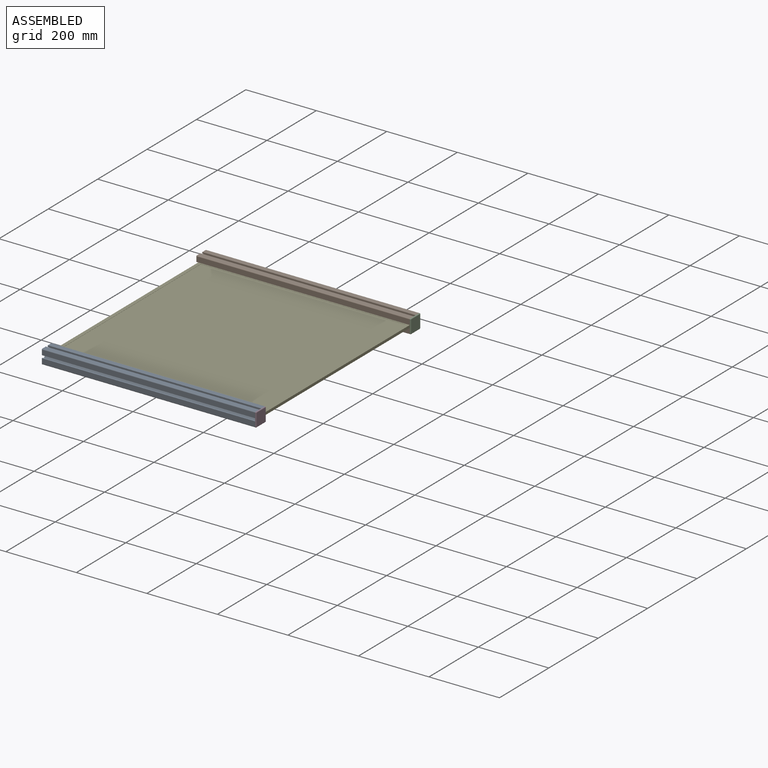
[diagram: assembled view]
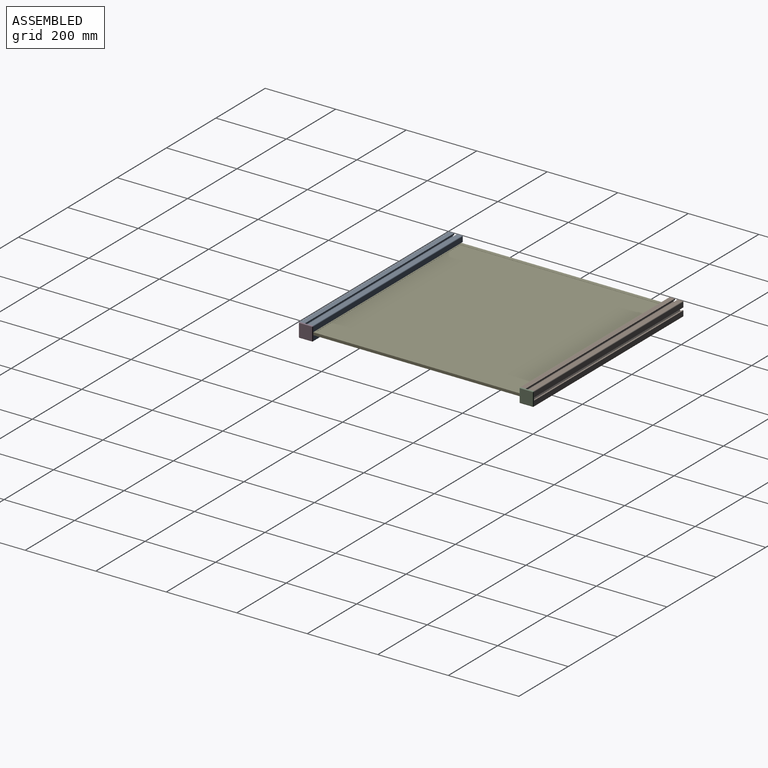
[diagram: assembled view, second angle]
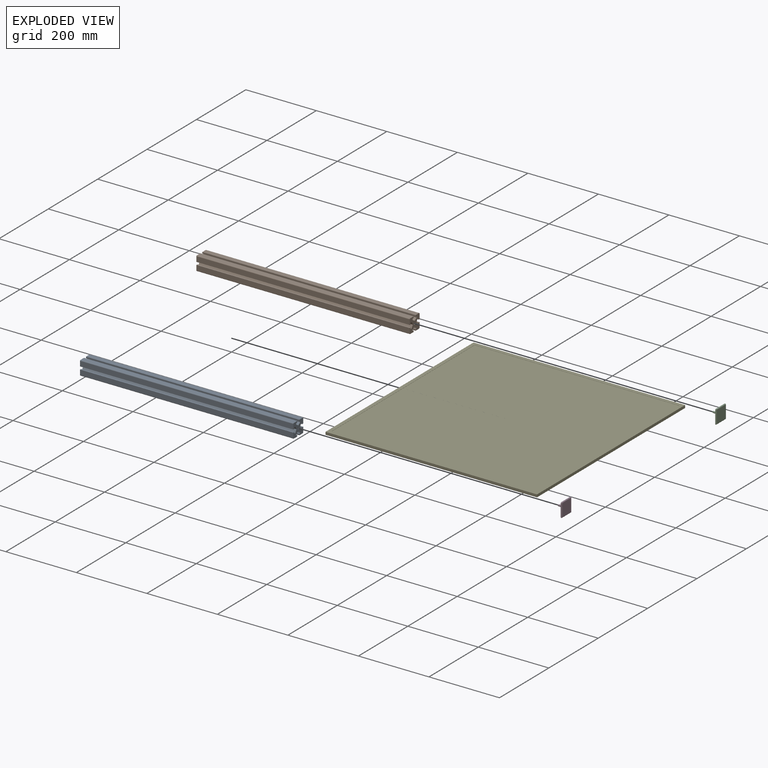
[diagram: exploded view]
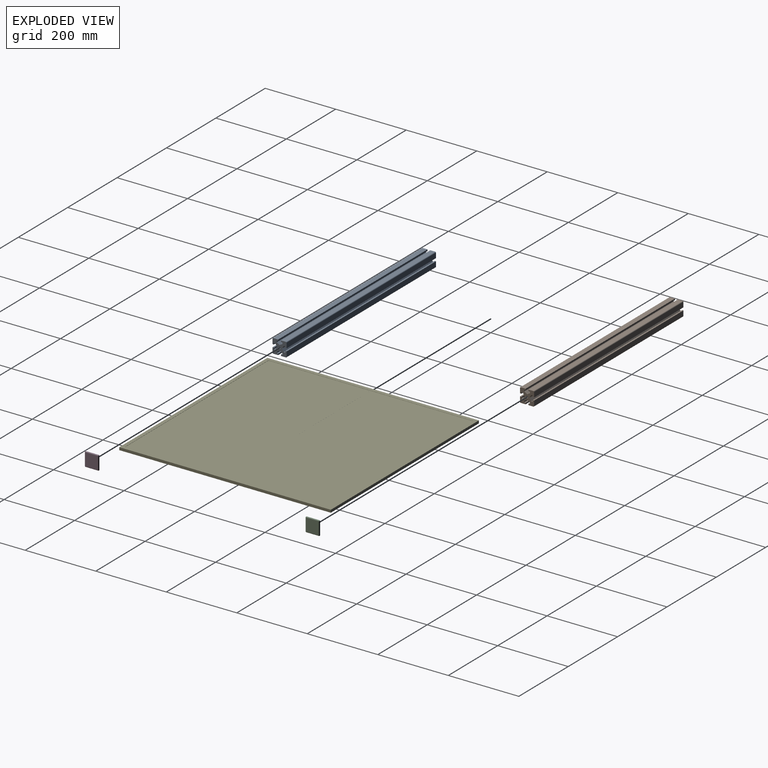
[diagram: exploded view, second angle]
ASSEMBLY  parts=5 mates=4
PART A: 47 faces, bbox 40x40x605 mm
  f0: plane 605x8mm, normal (0.53,0.85,0), area 5707.6mm2, adj f1,f43,f45,f46
  f1: plane 605x4mm, normal (1,0,0), area 2420mm2, adj f0,f2,f45,f46
  f2: plane 605x4mm, normal (0,-1,0), area 2420mm2, adj f1,f3,f45,f46
  f3: plane 605x4mm, normal (1,0,0), area 2420mm2, adj f2,f4,f45,f46
  f4: plane 605x14mm, normal (0,1,0), area 8470mm2, adj f3,f5,f45,f46
  f5: cylinder r=2mm len=605mm, axis (0,0,-1), area 1900.7mm2, adj f4,f6,f45,f46
  f6: plane 605x14mm, normal (-1,0,0), area 8470mm2, adj f5,f7,f45,f46
  f7: plane 605x4mm, normal (0,-1,0), area 2420mm2, adj f6,f8,f45,f46
  f8: plane 605x4mm, normal (1,0,0), area 2420mm2, adj f7,f9,f45,f46
  f9: plane 605x4mm, normal (0,-1,0), area 2420mm2, adj f8,f10,f45,f46
  f10: plane 605x8mm, normal (-0.85,-0.53,0), area 5707.6mm2, adj f9,f11,f45,f46
  f11: plane 605x8mm, normal (-0.85,0.53,0), area 5707.6mm2, adj f10,f12,f45,f46
  f12: plane 605x4mm, normal (0,1,0), area 2420mm2, adj f11,f13,f45,f46
  f13: plane 605x4mm, normal (1,0,0), area 2420mm2, adj f12,f14,f45,f46
  f14: plane 605x4mm, normal (0,1,0), area 2420mm2, adj f13,f15,f45,f46
  f15: plane 605x14mm, normal (-1,0,0), area 8470mm2, adj f14,f16,f45,f46
  f16: cylinder r=2mm len=605mm, axis (0,0,-1), area 1900.7mm2, adj f15,f17,f45,f46
  f17: plane 605x14mm, normal (0,-1,0), area 8470mm2, adj f16,f18,f45,f46
  f18: plane 605x4mm, normal (1,0,0), area 2420mm2, adj f17,f19,f45,f46
  f19: plane 605x4mm, normal (0,1,0), area 2420mm2, adj f18,f20,f45,f46
  f20: plane 605x4mm, normal (1,0,0), area 2420mm2, adj f19,f21,f45,f46
  f21: plane 605x8mm, normal (0.53,-0.85,0), area 5707.6mm2, adj f20,f22,f45,f46
  f22: plane 605x8mm, normal (-0.53,-0.85,0), area 5707.6mm2, adj f21,f23,f45,f46
  f23: plane 605x4mm, normal (-1,0,0), area 2420mm2, adj f22,f24,f45,f46
  f24: plane 605x4mm, normal (0,1,0), area 2420mm2, adj f23,f25,f45,f46
  f25: plane 605x4mm, normal (-1,0,0), area 2420mm2, adj f24,f26,f45,f46
  f26: plane 605x14mm, normal (0,-1,0), area 8470mm2, adj f25,f27,f45,f46
  f27: cylinder r=2mm len=605mm, axis (0,0,-1), area 1900.7mm2, adj f26,f28,f45,f46
  f28: plane 605x14mm, normal (1,0,0), area 8470mm2, adj f27,f29,f45,f46
  f29: plane 605x4mm, normal (0,1,0), area 2420mm2, adj f28,f30,f45,f46
  f30: plane 605x4mm, normal (-1,0,0), area 2420mm2, adj f29,f31,f45,f46
  f31: plane 605x4mm, normal (0,1,0), area 2420mm2, adj f30,f32,f45,f46
  f32: plane 605x8mm, normal (0.85,0.53,0), area 5707.6mm2, adj f31,f33,f45,f46
  f33: plane 605x8mm, normal (0.85,-0.53,0), area 5707.6mm2, adj f32,f34,f45,f46
  f34: plane 605x4mm, normal (0,-1,0), area 2420mm2, adj f33,f35,f45,f46
  f35: plane 605x4mm, normal (-1,0,0), area 2420mm2, adj f34,f36,f45,f46
  f36: plane 605x4mm, normal (0,-1,0), area 2420mm2, adj f35,f37,f45,f46
  f37: plane 605x14mm, normal (1,0,0), area 8470mm2, adj f36,f38,f45,f46
  f38: cylinder r=2mm len=605mm, axis (0,0,-1), area 1900.7mm2, adj f37,f39,f45,f46
  f39: plane 605x14mm, normal (0,1,0), area 8470mm2, adj f38,f40,f45,f46
  f40: plane 605x4mm, normal (-1,0,0), area 2420mm2, adj f39,f41,f45,f46
  f41: plane 605x4mm, normal (0,-1,0), area 2420mm2, adj f40,f42,f45,f46
  f42: plane 605x4mm, normal (-1,0,0), area 2420mm2, adj f41,f43,f45,f46
  f43: plane 605x8mm, normal (-0.53,0.85,0), area 5707.6mm2, adj f0,f42,f45,f46
  f44: cylinder r=2.5mm len=605mm, axis (0,0,-1), area 9503.3mm2, adj f45,f46
  f45: plane 40x40mm, normal (0,0,1), area 1032.9mm2, adj f0,f1,f2,f3,f4,f5,f6,f7
  f46: plane 40x40mm, normal (0,0,-1), area 1032.9mm2, adj f0,f1,f2,f3,f4,f5,f6,f7
PART B: same geometry as A
PART C: 20 faces, bbox 40x40x23 mm
  f0: plane 36x1mm, normal (1,0,0), area 36mm2, adj f1,f7,f9,f13
  f1: cylinder r=2mm len=2mm, axis (0,0,-1), area 3.1mm2, adj f0,f2,f9,f15
  f2: plane 36x1mm, normal (0,1,0), area 36mm2, adj f1,f3,f9,f17
  f3: cylinder r=2mm len=2mm, axis (0,0,-1), area 3.1mm2, adj f2,f4,f9,f16
  f4: plane 36x1mm, normal (-1,0,0), area 36mm2, adj f3,f5,f9,f14
  f5: cylinder r=2mm len=2mm, axis (0,0,-1), area 3.1mm2, adj f4,f6,f9,f12
  f6: plane 36x1mm, normal (0,-1,0), area 36mm2, adj f5,f7,f9,f10
  f7: cylinder r=2mm len=2mm, axis (0,0,-1), area 3.1mm2, adj f0,f6,f9,f11
  f8: plane 36x36mm, normal (0,0,1), area 1296mm2, adj f10,f13,f14,f17
  f9: plane 40x40mm, normal (0,0,-1), area 1577.7mm2, adj f0,f1,f2,f3,f4,f5,f6,f7
  f10: cylinder r=2mm len=36mm, axis (-1,0,0), area 113.1mm2, adj f6,f8,f11,f12
  f11: sphere r=2mm, area 6.3mm2, adj f7,f10,f13
  f12: sphere r=2mm, area 6.3mm2, adj f5,f10,f14
  f13: cylinder r=2mm len=36mm, axis (0,-1,0), area 113.1mm2, adj f0,f8,f11,f15
  f14: cylinder r=2mm len=36mm, axis (0,1,0), area 113.1mm2, adj f4,f8,f12,f16
  f15: sphere r=2mm, area 6.3mm2, adj f1,f13,f17
  f16: sphere r=2mm, area 6.3mm2, adj f3,f14,f17
  f17: cylinder r=2mm len=36mm, axis (1,0,0), area 113.1mm2, adj f2,f8,f15,f16
  f18: cylinder r=2.45mm len=20mm, axis (0,0,1), area 307.9mm2, adj f9,f19
  f19: plane 4.9x4.9mm, normal (0,0,-1), area 18.9mm2, adj f18
PART D: same geometry as C
PART E: 11 faces, bbox 600x600x7.5 mm
  f0: plane 600x600mm, normal (0,0,1), area 23600mm2, adj f1,f2,f3,f4,f6,f7,f8,f9
  f1: plane 600x7.5mm, normal (1,0,0), area 4500mm2, adj f0,f2,f4,f5
  f2: plane 600x7.5mm, normal (0,1,0), area 4500mm2, adj f0,f1,f3,f5
  f3: plane 600x7.5mm, normal (-1,0,0), area 4500mm2, adj f0,f2,f4,f5
  f4: plane 600x7.5mm, normal (0,-1,0), area 4500mm2, adj f0,f1,f3,f5
  f5: plane 600x600mm, normal (0,0,-1), area 360000mm2, adj f1,f2,f3,f4
  f6: plane 580x0.5mm, normal (-1,0,0), area 290mm2, adj f0,f7,f9,f10
  f7: plane 580x0.5mm, normal (0,-1,0), area 290mm2, adj f0,f6,f8,f10
  f8: plane 580x0.5mm, normal (1,0,0), area 290mm2, adj f0,f7,f9,f10
  f9: plane 580x0.5mm, normal (0,1,0), area 290mm2, adj f0,f6,f8,f10
  f10: plane 580x580mm, normal (0,0,1), area 336400mm2, adj f6,f7,f8,f9
PLACE A rot(axis=(0.58,0.58,0.58),120deg) t=(-305,-313,3.75)mm
PLACE B rot(axis=(0,1,0),90deg) t=(-305,313,3.75)mm
PLACE C rot(axis=(0.58,0.58,0.58),120deg) t=(300,313,3.75)mm
PLACE D rot(axis=(0,1,0),90deg) t=(300,-313,3.75)mm
PLACE E at identity fixed
MATE fastened B.f44 <-> E.f1  axis (1,0,0) through (300,313,3.75)mm
MATE fastened D.f18 <-> A.f44  axis (-1,0,0) through (280,-313,3.75)mm
MATE fastened C.f18 <-> B.f44  axis (-1,0,0) through (280,313,3.75)mm
MATE fastened A.f44 <-> E.f1  axis (1,0,0) through (300,-313,3.75)mm
